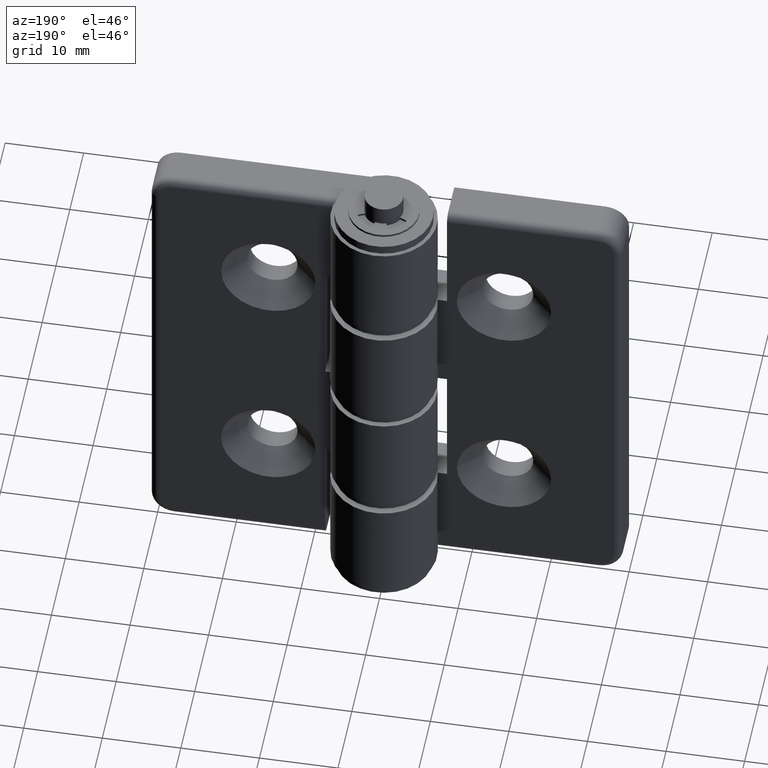
[diagram: clean part render]
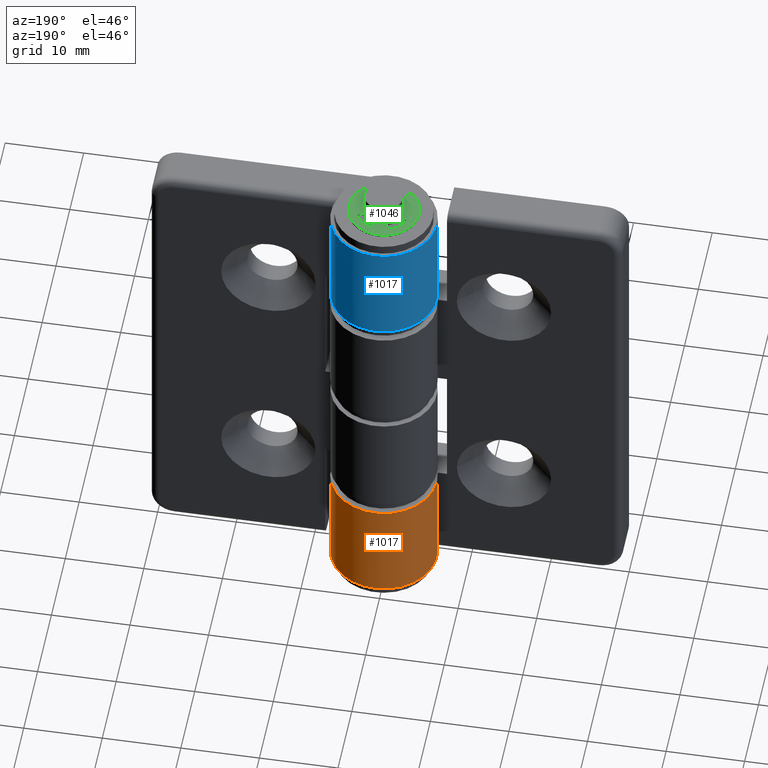
[diagram: same view with three faces highlighted in distinct colors, each labeled with its STEP entity id]
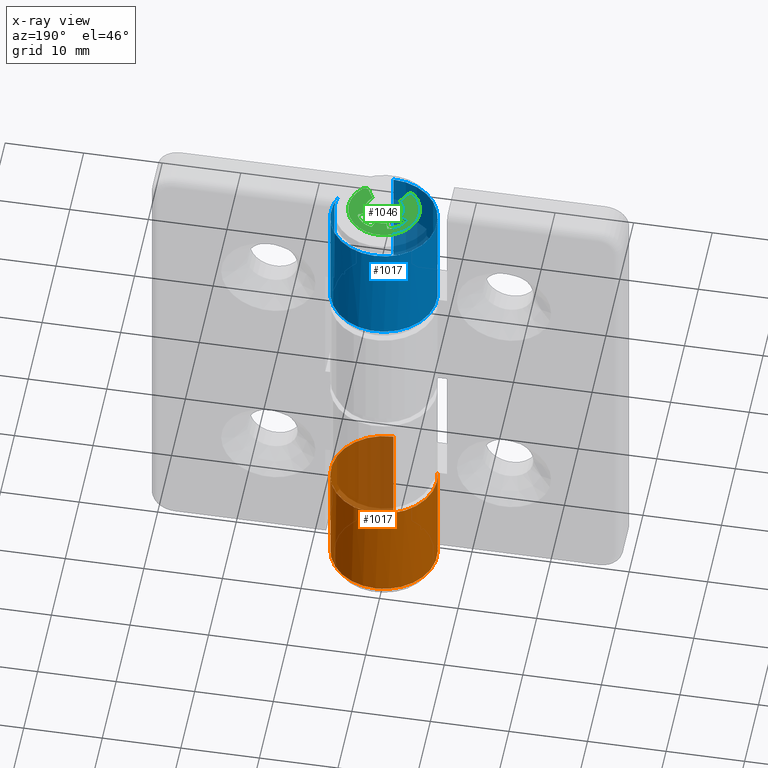
[diagram: x-ray of the same camera — body ghosted, the three highlighted faces saturated]
A machine part, auxiliary view with three faces highlighted in distinct colors.
The next image is the same camera in x-ray (body ghosted, the three faces saturated) — at least one of them is partly hidden behind the body in this view.
Their STEP definitions:

[orange] entity #1017 — the highlighted cylindrical surface (partial cylindrical patch) has radius 6.75 mm, axis along (0, 0, -1).
#142=FACE_OUTER_BOUND('',#214,.T.);
#214=EDGE_LOOP('',(#798,#799,#800,#801,#802));
#260=B_SPLINE_CURVE_WITH_KNOTS('',3,(#1553,#1554,#1555,#1556,#1557,#1558,
#1559,#1560,#1561,#1562),.UNSPECIFIED.,.F.,.F.,(4,2,2,2,4),(0.159651496014291,
0.199584540095299,0.239517584176308,0.277008755323114,0.31449992646992),
 .UNSPECIFIED.);
#278=LINE('',#1620,#351);
#289=LINE('',#1645,#362);
#351=VECTOR('',#1267,13.6);
#362=VECTOR('',#1284,12.6);
#418=CIRCLE('',#1084,6.75);
#428=CIRCLE('',#1102,6.75);
#470=VERTEX_POINT('',#1550);
#471=VERTEX_POINT('',#1552);
#487=VERTEX_POINT('',#1613);
#489=VERTEX_POINT('',#1619);
#500=VERTEX_POINT('',#1643);
#564=EDGE_CURVE('',#470,#471,#260,.F.);
#590=EDGE_CURVE('',#471,#487,#418,.T.);
#593=EDGE_CURVE('',#489,#487,#278,.T.);
#606=EDGE_CURVE('',#470,#500,#289,.T.);
#614=EDGE_CURVE('',#500,#489,#428,.T.);
#798=ORIENTED_EDGE('',*,*,#614,.T.);
#799=ORIENTED_EDGE('',*,*,#593,.T.);
#800=ORIENTED_EDGE('',*,*,#590,.F.);
#801=ORIENTED_EDGE('',*,*,#564,.F.);
#802=ORIENTED_EDGE('',*,*,#606,.T.);
#974=CYLINDRICAL_SURFACE('',#1108,6.75);
#1017=ADVANCED_FACE('',(#142),#974,.T.);
#1084=AXIS2_PLACEMENT_3D('',#1614,#1260,#1261);
#1102=AXIS2_PLACEMENT_3D('',#1664,#1310,#1311);
#1108=AXIS2_PLACEMENT_3D('',#1673,#1323,#1324);
#1260=DIRECTION('center_axis',(0.,0.,-1.));
#1261=DIRECTION('ref_axis',(-1.,0.,0.));
#1267=DIRECTION('',(0.,0.,-1.));
#1284=DIRECTION('',(0.,0.,1.));
#1310=DIRECTION('center_axis',(0.,0.,-1.));
#1311=DIRECTION('ref_axis',(-1.,0.,0.));
#1323=DIRECTION('center_axis',(0.,0.,-1.));
#1324=DIRECTION('ref_axis',(-1.,0.,0.));
#1550=CARTESIAN_POINT('',(-6.56962708226274,5.2,-59.));
#1552=CARTESIAN_POINT('',(-6.2497999967999,4.2,-60.));
#1553=CARTESIAN_POINT('Ctrl Pts',(-6.2497999967999,4.2,-60.));
#1554=CARTESIAN_POINT('Ctrl Pts',(-6.30008605230932,4.32324619198504,-60.));
#1555=CARTESIAN_POINT('Ctrl Pts',(-6.34996771551148,4.45702212452065,-59.9757766391248));
#1556=CARTESIAN_POINT('Ctrl Pts',(-6.43456099026227,4.70640944280737,-59.8727828654644));
#1557=CARTESIAN_POINT('Ctrl Pts',(-6.46946714426976,4.82190868510178,-59.7939008493045));
#1558=CARTESIAN_POINT('Ctrl Pts',(-6.51962833209589,4.99930992521233,-59.6132954453148));
#1559=CARTESIAN_POINT('Ctrl Pts',(-6.53901391831275,5.07474787379535,-59.5022335753906));
#1560=CARTESIAN_POINT('Ctrl Pts',(-6.56390670142553,5.17510270920278,-59.2580642745219));
#1561=CARTESIAN_POINT('Ctrl Pts',(-6.56962708226274,5.2,-59.1249705704894));
#1562=CARTESIAN_POINT('Ctrl Pts',(-6.56962708226274,5.2,-59.));
#1613=CARTESIAN_POINT('',(0.,0.,-60.));
#1614=CARTESIAN_POINT('Origin',(-2.22044604925031E-15,6.75,-60.));
#1619=CARTESIAN_POINT('',(2.46519032881566E-31,0.,-46.4));
#1620=CARTESIAN_POINT('',(2.46519032881566E-31,0.,0.));
#1643=CARTESIAN_POINT('',(-6.56962708226274,5.2,-46.4));
#1645=CARTESIAN_POINT('',(-6.56962708226274,5.2,0.));
#1664=CARTESIAN_POINT('Origin',(-2.22044604925031E-15,6.75,-46.4));
#1673=CARTESIAN_POINT('Origin',(-2.22044604925031E-15,6.75,0.));

[blue] entity #1017 — the highlighted cylindrical surface (partial cylindrical patch) has radius 6.75 mm, axis along (0, 0, 1).
#142=FACE_OUTER_BOUND('',#214,.T.);
#214=EDGE_LOOP('',(#798,#799,#800,#801,#802));
#260=B_SPLINE_CURVE_WITH_KNOTS('',3,(#1553,#1554,#1555,#1556,#1557,#1558,
#1559,#1560,#1561,#1562),.UNSPECIFIED.,.F.,.F.,(4,2,2,2,4),(0.159651496014291,
0.199584540095299,0.239517584176308,0.277008755323114,0.31449992646992),
 .UNSPECIFIED.);
#278=LINE('',#1620,#351);
#289=LINE('',#1645,#362);
#351=VECTOR('',#1267,13.6);
#362=VECTOR('',#1284,12.6);
#418=CIRCLE('',#1084,6.75);
#428=CIRCLE('',#1102,6.75);
#470=VERTEX_POINT('',#1550);
#471=VERTEX_POINT('',#1552);
#487=VERTEX_POINT('',#1613);
#489=VERTEX_POINT('',#1619);
#500=VERTEX_POINT('',#1643);
#564=EDGE_CURVE('',#470,#471,#260,.F.);
#590=EDGE_CURVE('',#471,#487,#418,.T.);
#593=EDGE_CURVE('',#489,#487,#278,.T.);
#606=EDGE_CURVE('',#470,#500,#289,.T.);
#614=EDGE_CURVE('',#500,#489,#428,.T.);
#798=ORIENTED_EDGE('',*,*,#614,.T.);
#799=ORIENTED_EDGE('',*,*,#593,.T.);
#800=ORIENTED_EDGE('',*,*,#590,.F.);
#801=ORIENTED_EDGE('',*,*,#564,.F.);
#802=ORIENTED_EDGE('',*,*,#606,.T.);
#974=CYLINDRICAL_SURFACE('',#1108,6.75);
#1017=ADVANCED_FACE('',(#142),#974,.T.);
#1084=AXIS2_PLACEMENT_3D('',#1614,#1260,#1261);
#1102=AXIS2_PLACEMENT_3D('',#1664,#1310,#1311);
#1108=AXIS2_PLACEMENT_3D('',#1673,#1323,#1324);
#1260=DIRECTION('center_axis',(0.,0.,-1.));
#1261=DIRECTION('ref_axis',(-1.,0.,0.));
#1267=DIRECTION('',(0.,0.,-1.));
#1284=DIRECTION('',(0.,0.,1.));
#1310=DIRECTION('center_axis',(0.,0.,-1.));
#1311=DIRECTION('ref_axis',(-1.,0.,0.));
#1323=DIRECTION('center_axis',(0.,0.,-1.));
#1324=DIRECTION('ref_axis',(-1.,0.,0.));
#1550=CARTESIAN_POINT('',(-6.56962708226274,5.2,-59.));
#1552=CARTESIAN_POINT('',(-6.2497999967999,4.2,-60.));
#1553=CARTESIAN_POINT('Ctrl Pts',(-6.2497999967999,4.2,-60.));
#1554=CARTESIAN_POINT('Ctrl Pts',(-6.30008605230932,4.32324619198504,-60.));
#1555=CARTESIAN_POINT('Ctrl Pts',(-6.34996771551148,4.45702212452065,-59.9757766391248));
#1556=CARTESIAN_POINT('Ctrl Pts',(-6.43456099026227,4.70640944280737,-59.8727828654644));
#1557=CARTESIAN_POINT('Ctrl Pts',(-6.46946714426976,4.82190868510178,-59.7939008493045));
#1558=CARTESIAN_POINT('Ctrl Pts',(-6.51962833209589,4.99930992521233,-59.6132954453148));
#1559=CARTESIAN_POINT('Ctrl Pts',(-6.53901391831275,5.07474787379535,-59.5022335753906));
#1560=CARTESIAN_POINT('Ctrl Pts',(-6.56390670142553,5.17510270920278,-59.2580642745219));
#1561=CARTESIAN_POINT('Ctrl Pts',(-6.56962708226274,5.2,-59.1249705704894));
#1562=CARTESIAN_POINT('Ctrl Pts',(-6.56962708226274,5.2,-59.));
#1613=CARTESIAN_POINT('',(0.,0.,-60.));
#1614=CARTESIAN_POINT('Origin',(-2.22044604925031E-15,6.75,-60.));
#1619=CARTESIAN_POINT('',(2.46519032881566E-31,0.,-46.4));
#1620=CARTESIAN_POINT('',(2.46519032881566E-31,0.,0.));
#1643=CARTESIAN_POINT('',(-6.56962708226274,5.2,-46.4));
#1645=CARTESIAN_POINT('',(-6.56962708226274,5.2,0.));
#1664=CARTESIAN_POINT('Origin',(-2.22044604925031E-15,6.75,-46.4));
#1673=CARTESIAN_POINT('Origin',(-2.22044604925031E-15,6.75,0.));

[green] entity #1046 — the highlighted planar face has unit normal (0, -0, 1).
#114=PLANE('',#1167);
#171=FACE_OUTER_BOUND('',#250,.T.);
#250=EDGE_LOOP('',(#899,#900,#901,#902,#903,#904,#905,#906,#907,#908,#909,
#910,#911,#912,#913,#914,#915,#916));
#308=LINE('',#1752,#381);
#313=LINE('',#1767,#386);
#320=LINE('',#1803,#393);
#323=LINE('',#1813,#396);
#324=LINE('',#1816,#397);
#325=LINE('',#1819,#398);
#381=VECTOR('',#1417,0.798793090103954);
#386=VECTOR('',#1430,0.808789599519452);
#393=VECTOR('',#1469,1.46755971244607);
#396=VECTOR('',#1478,1.46755971244608);
#397=VECTOR('',#1481,0.798793090103954);
#398=VECTOR('',#1484,0.808789599519454);
#445=CIRCLE('',#1145,0.2);
#447=CIRCLE('',#1149,0.2);
#449=CIRCLE('',#1153,0.2);
#450=CIRCLE('',#1155,3.);
#453=CIRCLE('',#1159,0.2);
#454=CIRCLE('',#1161,3.);
#456=CIRCLE('',#1164,0.5);
#458=CIRCLE('',#1168,4.5);
#459=CIRCLE('',#1169,0.5);
#460=CIRCLE('',#1170,2.45);
#461=CIRCLE('',#1171,2.45);
#462=CIRCLE('',#1172,2.45);
#528=VERTEX_POINT('',#1742);
#529=VERTEX_POINT('',#1744);
#531=VERTEX_POINT('',#1750);
#534=VERTEX_POINT('',#1757);
#535=VERTEX_POINT('',#1759);
#537=VERTEX_POINT('',#1765);
#540=VERTEX_POINT('',#1772);
#541=VERTEX_POINT('',#1774);
#544=VERTEX_POINT('',#1784);
#545=VERTEX_POINT('',#1786);
#546=VERTEX_POINT('',#1793);
#547=VERTEX_POINT('',#1794);
#550=VERTEX_POINT('',#1802);
#552=VERTEX_POINT('',#1808);
#553=VERTEX_POINT('',#1810);
#554=VERTEX_POINT('',#1812);
#555=VERTEX_POINT('',#1814);
#556=VERTEX_POINT('',#1817);
#645=EDGE_CURVE('',#528,#529,#445,.T.);
#649=EDGE_CURVE('',#528,#531,#308,.T.);
#652=EDGE_CURVE('',#534,#535,#447,.T.);
#656=EDGE_CURVE('',#534,#537,#313,.T.);
#659=EDGE_CURVE('',#540,#541,#449,.T.);
#661=EDGE_CURVE('',#540,#529,#450,.T.);
#665=EDGE_CURVE('',#544,#545,#453,.T.);
#667=EDGE_CURVE('',#544,#535,#454,.T.);
#669=EDGE_CURVE('',#546,#547,#456,.T.);
#673=EDGE_CURVE('',#550,#547,#320,.T.);
#676=EDGE_CURVE('',#546,#552,#458,.T.);
#677=EDGE_CURVE('',#553,#552,#459,.T.);
#678=EDGE_CURVE('',#553,#554,#323,.T.);
#679=EDGE_CURVE('',#554,#555,#460,.T.);
#680=EDGE_CURVE('',#555,#545,#324,.T.);
#681=EDGE_CURVE('',#537,#556,#461,.T.);
#682=EDGE_CURVE('',#556,#541,#325,.T.);
#683=EDGE_CURVE('',#531,#550,#462,.T.);
#899=ORIENTED_EDGE('',*,*,#669,.F.);
#900=ORIENTED_EDGE('',*,*,#676,.T.);
#901=ORIENTED_EDGE('',*,*,#677,.F.);
#902=ORIENTED_EDGE('',*,*,#678,.T.);
#903=ORIENTED_EDGE('',*,*,#679,.T.);
#904=ORIENTED_EDGE('',*,*,#680,.T.);
#905=ORIENTED_EDGE('',*,*,#665,.F.);
#906=ORIENTED_EDGE('',*,*,#667,.T.);
#907=ORIENTED_EDGE('',*,*,#652,.F.);
#908=ORIENTED_EDGE('',*,*,#656,.T.);
#909=ORIENTED_EDGE('',*,*,#681,.T.);
#910=ORIENTED_EDGE('',*,*,#682,.T.);
#911=ORIENTED_EDGE('',*,*,#659,.F.);
#912=ORIENTED_EDGE('',*,*,#661,.T.);
#913=ORIENTED_EDGE('',*,*,#645,.F.);
#914=ORIENTED_EDGE('',*,*,#649,.T.);
#915=ORIENTED_EDGE('',*,*,#683,.T.);
#916=ORIENTED_EDGE('',*,*,#673,.T.);
#1046=ADVANCED_FACE('',(#171),#114,.T.);
#1145=AXIS2_PLACEMENT_3D('',#1745,#1410,#1411);
#1149=AXIS2_PLACEMENT_3D('',#1760,#1423,#1424);
#1153=AXIS2_PLACEMENT_3D('',#1775,#1436,#1437);
#1155=AXIS2_PLACEMENT_3D('',#1778,#1441,#1442);
#1159=AXIS2_PLACEMENT_3D('',#1787,#1450,#1451);
#1161=AXIS2_PLACEMENT_3D('',#1790,#1455,#1456);
#1164=AXIS2_PLACEMENT_3D('',#1795,#1461,#1462);
#1167=AXIS2_PLACEMENT_3D('',#1807,#1472,#1473);
#1168=AXIS2_PLACEMENT_3D('',#1809,#1474,#1475);
#1169=AXIS2_PLACEMENT_3D('',#1811,#1476,#1477);
#1170=AXIS2_PLACEMENT_3D('',#1815,#1479,#1480);
#1171=AXIS2_PLACEMENT_3D('',#1818,#1482,#1483);
#1172=AXIS2_PLACEMENT_3D('',#1820,#1485,#1486);
#1410=DIRECTION('center_axis',(4.44089209850063E-16,-5.89805981832115E-17,
1.));
#1411=DIRECTION('ref_axis',(0.933711287865826,-0.358026857808099,0.));
#1417=DIRECTION('',(-0.921614003216785,-0.388107754463541,3.86388006957493E-16));
#1423=DIRECTION('center_axis',(4.44089209850063E-16,-5.89805981832115E-17,
1.));
#1424=DIRECTION('ref_axis',(0.464765067382234,0.885434036019165,-9.75778287698649E-16));
#1430=DIRECTION('',(0.302878745401321,-0.95302910007204,-1.90715409133908E-16));
#1436=DIRECTION('center_axis',(4.44089209850063E-16,-5.89805981832115E-17,
1.));
#1437=DIRECTION('ref_axis',(-0.471972586142102,0.881613224679812,9.75778287698645E-16));
#1441=DIRECTION('center_axis',(-4.44089209850063E-16,5.89805981832115E-17,
-1.));
#1442=DIRECTION('ref_axis',(0.932155740018298,0.362057559444543,-3.92605934609134E-16));
#1450=DIRECTION('center_axis',(4.44089209850063E-16,-5.89805981832115E-17,
1.));
#1451=DIRECTION('ref_axis',(-0.930759593744413,-0.365631752796082,0.));
#1455=DIRECTION('center_axis',(-4.44089209850063E-16,5.89805981832115E-17,
-1.));
#1456=DIRECTION('ref_axis',(-0.22832816352784,0.973584228374723,1.58820653898876E-16));
#1461=DIRECTION('center_axis',(-4.44089209850063E-16,5.89805981832115E-17,
-1.));
#1462=DIRECTION('ref_axis',(-0.129467951409742,-0.991583606942836,4.71069825677143E-16));
#1469=DIRECTION('',(0.479635871890804,-0.877467623559723,-2.64754680687687E-16));
#1472=DIRECTION('center_axis',(4.44089209850063E-16,-5.89805981832115E-17,
1.));
#1473=DIRECTION('ref_axis',(1.,0.,-4.44089209850063E-16));
#1474=DIRECTION('center_axis',(4.44089209850063E-16,-5.89805981832115E-17,
1.));
#1475=DIRECTION('ref_axis',(-0.614334592518965,0.789045631401985,3.19357747109247E-16));
#1476=DIRECTION('center_axis',(-4.44089209850063E-16,5.89805981832115E-17,
-1.));
#1477=DIRECTION('ref_axis',(0.137552548378749,-0.990494470673366,-4.71069825677143E-16));
#1478=DIRECTION('',(0.472461916145315,0.881351086566697,-1.57832624730092E-16));
#1479=DIRECTION('center_axis',(-4.44089209850063E-16,5.89805981832115E-17,
-1.));
#1480=DIRECTION('ref_axis',(-0.901616355652423,0.432536642632788,4.25909364888217E-16));
#1481=DIRECTION('',(-0.92474935102224,0.38057671734349,4.33117851048347E-16));
#1482=DIRECTION('center_axis',(-4.44089209850063E-16,5.89805981832115E-17,
-1.));
#1483=DIRECTION('ref_axis',(0.28221627332446,0.959350809178193,-6.87461172346109E-17));
#1484=DIRECTION('',(0.295094273543179,0.955468141657284,-7.46941002291206E-17));
#1485=DIRECTION('center_axis',(-4.44089209850063E-16,5.89805981832115E-17,
-1.));
#1486=DIRECTION('ref_axis',(0.717134348402959,-0.696934951297941,-3.5957726646095E-16));
#1742=CARTESIAN_POINT('',(2.93642078006631,8.03771703543198,1.49999999999999));
#1744=CARTESIAN_POINT('',(3.03975712656346,8.30721165871782,1.49999999999999));
#1745=CARTESIAN_POINT('Origin',(2.8587992291736,8.22203983607534,1.49999999999999));
#1750=CARTESIAN_POINT('',(2.2002418825537,7.72769924295074,1.49999999999999));
#1752=CARTESIAN_POINT('',(2.2002418825537,7.72769924295074,1.49999999999999));
#1757=CARTESIAN_POINT('',(-0.955545653805963,9.7654909183262,1.5));
#1759=CARTESIAN_POINT('',(-1.20455695556271,9.89619715925662,1.5));
#1760=CARTESIAN_POINT('Origin',(-1.14615147382037,9.70491516924594,1.5));
#1765=CARTESIAN_POINT('',(-0.710580474609874,8.99469089414856,1.5));
#1767=CARTESIAN_POINT('',(-0.949167803338718,9.74542256693648,1.5));
#1772=CARTESIAN_POINT('',(1.17803582098017,9.90591539516122,1.49999999999999));
#1774=CARTESIAN_POINT('',(0.93009904896441,9.77318217813116,1.49999999999999));
#1775=CARTESIAN_POINT('Origin',(1.12119267729587,9.71416332342252,1.49999999999999));
#1778=CARTESIAN_POINT('Origin',(0.325388665715586,7.02963431908065,1.49999999999999));
#1784=CARTESIAN_POINT('',(-3.05317479027774,8.28235951012511,1.5));
#1786=CARTESIAN_POINT('',(-2.9476434630231,8.01371682651875,1.5));
#1787=CARTESIAN_POINT('Origin',(-2.87152811955441,8.19866669672319,1.5));
#1790=CARTESIAN_POINT('Origin',(-0.328474729427676,7.02696730909643,1.5));
#1793=CARTESIAN_POINT('',(3.26205815354776,3.55016506844757,1.49999999999999));
#1794=CARTESIAN_POINT('',(2.46087343581815,3.65477323600799,1.49999999999999));
#1795=CARTESIAN_POINT('Origin',(2.89960724759802,3.89459117195339,1.49999999999999));
#1802=CARTESIAN_POINT('',(1.75697915358726,4.94250936932004,1.49999999999999));
#1803=CARTESIAN_POINT('',(2.76450566633536,3.09929465869106,1.49999999999999));
#1807=CARTESIAN_POINT('Origin',(-0.00324433015667937,7.44540337072802,1.5));
#1808=CARTESIAN_POINT('',(-3.23666251773168,3.52365776884378,1.5));
#1809=CARTESIAN_POINT('Origin',(1.1297386637299E-14,6.64999999999999,1.5));
#1810=CARTESIAN_POINT('',(-2.43635780581148,3.63479816978848,1.5));
#1811=CARTESIAN_POINT('Origin',(-2.87703334909482,3.87102912786114,1.5));
#1812=CARTESIAN_POINT('',(-1.74299173201154,4.92823351695434,1.5));
#1813=CARTESIAN_POINT('',(-1.74299173201154,4.92823351695434,1.5));
#1814=CARTESIAN_POINT('',(-2.20896007134842,7.70971477445032,1.5));
#1815=CARTESIAN_POINT('Origin',(1.18091258058254E-14,6.64999999999999,1.5));
#1816=CARTESIAN_POINT('',(-3.13370942237066,8.09029149179381,1.5));
#1817=CARTESIAN_POINT('',(0.691429869644938,9.00040948248656,1.49999999999999));
#1818=CARTESIAN_POINT('Origin',(1.18091258058254E-14,6.64999999999999,1.5));
#1819=CARTESIAN_POINT('',(0.986524143188117,9.95587762414385,1.49999999999999));
#1820=CARTESIAN_POINT('Origin',(1.18091258058254E-14,6.64999999999999,1.5));